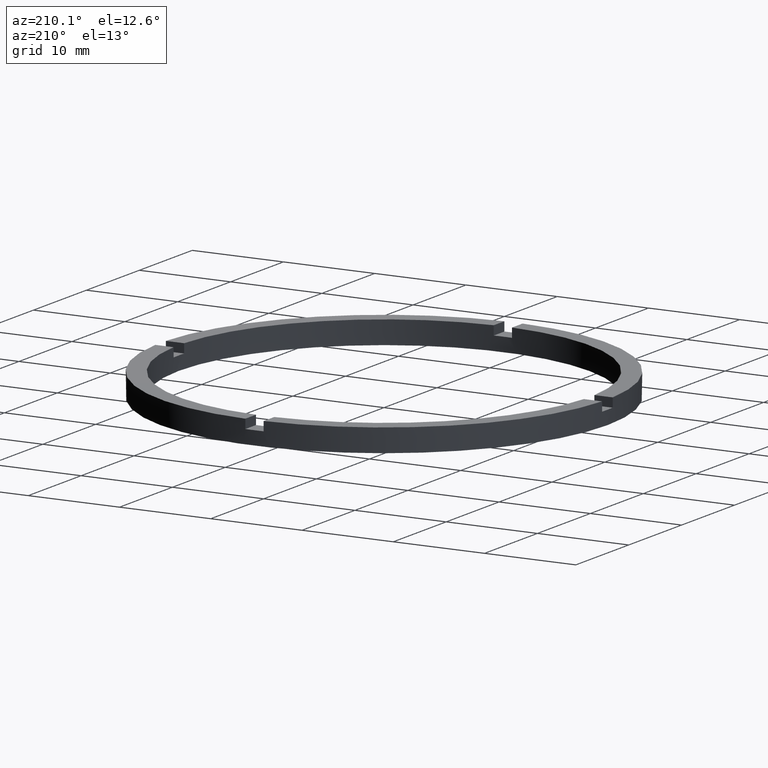
[diagram: clean part render]
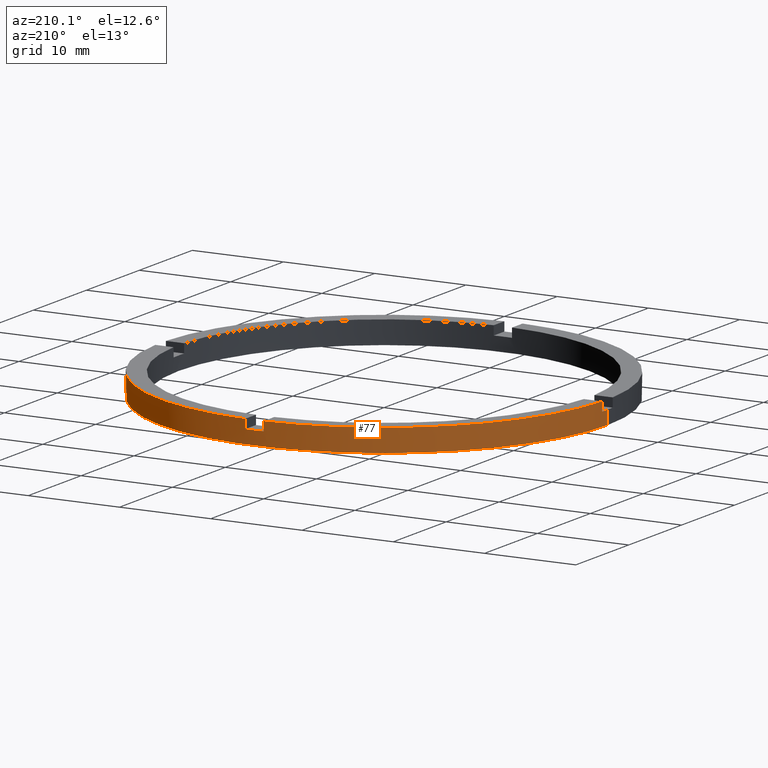
[diagram: same view with one face highlighted and labeled with its STEP entity id]
A machine part, auxiliary view. The second image highlights one B-rep face of the part: STEP entity #77.
In plain terms, the highlighted cylindrical surface (partial cylindrical patch) has radius 24.5 mm, axis along (-0, -0, -1).
Its self-contained STEP definition (entity closure, byte-faithful):
#18 = FACE_OUTER_BOUND ( 'NONE', #708, .T. ) ;
#25 = VERTEX_POINT ( 'NONE', #407 ) ;
#41 = ORIENTED_EDGE ( 'NONE', *, *, #683, .T. ) ;
#42 = CARTESIAN_POINT ( 'NONE',  ( 0.000000000000000000, 0.000000000000000000, 2.500000000000000000 ) ) ;
#60 = CIRCLE ( 'NONE', #313, 24.50000000000000000 ) ;
#63 = VECTOR ( 'NONE', #352, 1000.000000000000000 ) ;
#64 = CIRCLE ( 'NONE', #477, 24.50000000000000000 ) ;
#77 = ADVANCED_FACE ( 'NONE', ( #18 ), #575, .T. ) ;
#82 = LINE ( 'NONE', #376, #103 ) ;
#84 = CARTESIAN_POINT ( 'NONE',  ( 0.9999999999999740208, 24.47958332978729601, 1.500000000000000000 ) ) ;
#86 = DIRECTION ( 'NONE',  ( 0.000000000000000000, 0.000000000000000000, 1.000000000000000000 ) ) ;
#90 = ORIENTED_EDGE ( 'NONE', *, *, #469, .F. ) ;
#93 = AXIS2_PLACEMENT_3D ( 'NONE', #353, #406, #457 ) ;
#103 = VECTOR ( 'NONE', #718, 1000.000000000000000 ) ;
#108 = VERTEX_POINT ( 'NONE', #680 ) ;
#125 = DIRECTION ( 'NONE',  ( -0.000000000000000000, -0.000000000000000000, -1.000000000000000000 ) ) ;
#145 = DIRECTION ( 'NONE',  ( 1.000000000000000000, 0.000000000000000000, 0.000000000000000000 ) ) ;
#152 = DIRECTION ( 'NONE',  ( 1.000000000000000000, 0.000000000000000000, 0.000000000000000000 ) ) ;
#157 = CARTESIAN_POINT ( 'NONE',  ( -24.50000000000000000, 0.000000000000000000, 2.500000000000000000 ) ) ;
#169 = ORIENTED_EDGE ( 'NONE', *, *, #568, .F. ) ;
#172 = VERTEX_POINT ( 'NONE', #443 ) ;
#188 = DIRECTION ( 'NONE',  ( -0.000000000000000000, -0.000000000000000000, -1.000000000000000000 ) ) ;
#192 = CARTESIAN_POINT ( 'NONE',  ( 0.9999999999999740208, 24.47958332978729601, 2.500000000000000000 ) ) ;
#201 = CARTESIAN_POINT ( 'NONE',  ( 0.000000000000000000, 0.000000000000000000, 2.500000000000000000 ) ) ;
#214 = CARTESIAN_POINT ( 'NONE',  ( 24.50000000000000000, 3.000384657911015469E-15, 0.000000000000000000 ) ) ;
#220 = VERTEX_POINT ( 'NONE', #84 ) ;
#221 = CIRCLE ( 'NONE', #93, 24.50000000000000000 ) ;
#234 = LINE ( 'NONE', #317, #514 ) ;
#241 = CARTESIAN_POINT ( 'NONE',  ( 24.47958332978729956, 0.9999999999998423483, 1.500000000000000000 ) ) ;
#262 = AXIS2_PLACEMENT_3D ( 'NONE', #354, #509, #599 ) ;
#279 = ORIENTED_EDGE ( 'NONE', *, *, #643, .F. ) ;
#290 = ORIENTED_EDGE ( 'NONE', *, *, #730, .F. ) ;
#302 = ORIENTED_EDGE ( 'NONE', *, *, #704, .F. ) ;
#305 = ORIENTED_EDGE ( 'NONE', *, *, #748, .T. ) ;
#313 = AXIS2_PLACEMENT_3D ( 'NONE', #531, #664, #152 ) ;
#317 = CARTESIAN_POINT ( 'NONE',  ( 0.9999999999999740208, 24.47958332978729601, 2.500000000000000000 ) ) ;
#331 = CIRCLE ( 'NONE', #650, 24.50000000000000000 ) ;
#336 = VECTOR ( 'NONE', #86, 1000.000000000000000 ) ;
#349 = DIRECTION ( 'NONE',  ( 0.000000000000000000, 0.000000000000000000, 1.000000000000000000 ) ) ;
#352 = DIRECTION ( 'NONE',  ( -0.000000000000000000, -0.000000000000000000, -1.000000000000000000 ) ) ;
#353 = CARTESIAN_POINT ( 'NONE',  ( 0.000000000000000000, 0.000000000000000000, 1.500000000000000000 ) ) ;
#354 = CARTESIAN_POINT ( 'NONE',  ( 0.000000000000000000, 0.000000000000000000, 1.500000000000000000 ) ) ;
#368 = VERTEX_POINT ( 'NONE', #476 ) ;
#376 = CARTESIAN_POINT ( 'NONE',  ( 24.50000000000000000, 3.000384657911015469E-15, 2.500000000000000000 ) ) ;
#388 = CARTESIAN_POINT ( 'NONE',  ( -1.000000000000025979, 24.47958332978729601, 2.500000000000000000 ) ) ;
#390 = EDGE_CURVE ( 'NONE', #455, #640, #331, .T. ) ;
#404 = ORIENTED_EDGE ( 'NONE', *, *, #440, .T. ) ;
#406 = DIRECTION ( 'NONE',  ( 0.000000000000000000, 0.000000000000000000, 1.000000000000000000 ) ) ;
#407 = CARTESIAN_POINT ( 'NONE',  ( 24.47958332978729956, 0.9999999999998423483, 2.500000000000000000 ) ) ;
#425 = DIRECTION ( 'NONE',  ( 0.000000000000000000, 0.000000000000000000, 1.000000000000000000 ) ) ;
#430 = VERTEX_POINT ( 'NONE', #241 ) ;
#440 = EDGE_CURVE ( 'NONE', #475, #455, #82, .T. ) ;
#443 = CARTESIAN_POINT ( 'NONE',  ( -24.47958332978729601, 0.9999999999999742428, 2.500000000000000000 ) ) ;
#452 = EDGE_CURVE ( 'NONE', #554, #172, #612, .T. ) ;
#455 = VERTEX_POINT ( 'NONE', #214 ) ;
#457 = DIRECTION ( 'NONE',  ( 1.000000000000000000, 0.000000000000000000, 0.000000000000000000 ) ) ;
#468 = DIRECTION ( 'NONE',  ( 0.000000000000000000, 0.000000000000000000, 1.000000000000000000 ) ) ;
#469 = EDGE_CURVE ( 'NONE', #220, #108, #60, .T. ) ;
#475 = VERTEX_POINT ( 'NONE', #651 ) ;
#476 = CARTESIAN_POINT ( 'NONE',  ( -1.000000000000025979, 24.47958332978729601, 2.500000000000000000 ) ) ;
#477 = AXIS2_PLACEMENT_3D ( 'NONE', #201, #468, #516 ) ;
#480 = ORIENTED_EDGE ( 'NONE', *, *, #390, .T. ) ;
#494 = DIRECTION ( 'NONE',  ( 0.000000000000000000, 0.000000000000000000, 1.000000000000000000 ) ) ;
#509 = DIRECTION ( 'NONE',  ( 0.000000000000000000, 0.000000000000000000, 1.000000000000000000 ) ) ;
#514 = VECTOR ( 'NONE', #494, 1000.000000000000000 ) ;
#516 = DIRECTION ( 'NONE',  ( 1.000000000000000000, 0.000000000000000000, 0.000000000000000000 ) ) ;
#517 = VECTOR ( 'NONE', #738, 1000.000000000000000 ) ;
#528 = VERTEX_POINT ( 'NONE', #192 ) ;
#531 = CARTESIAN_POINT ( 'NONE',  ( 0.000000000000000000, 0.000000000000000000, 1.500000000000000000 ) ) ;
#549 = AXIS2_PLACEMENT_3D ( 'NONE', #691, #188, #742 ) ;
#554 = VERTEX_POINT ( 'NONE', #633 ) ;
#562 = ORIENTED_EDGE ( 'NONE', *, *, #452, .T. ) ;
#568 = EDGE_CURVE ( 'NONE', #368, #172, #611, .T. ) ;
#575 = CYLINDRICAL_SURFACE ( 'NONE', #549, 24.50000000000000000 ) ;
#590 = LINE ( 'NONE', #658, #63 ) ;
#599 = DIRECTION ( 'NONE',  ( 1.000000000000000000, 0.000000000000000000, 0.000000000000000000 ) ) ;
#611 = CIRCLE ( 'NONE', #687, 24.50000000000000000 ) ;
#612 = LINE ( 'NONE', #776, #336 ) ;
#613 = LINE ( 'NONE', #157, #615 ) ;
#615 = VECTOR ( 'NONE', #125, 1000.000000000000000 ) ;
#623 = CIRCLE ( 'NONE', #262, 24.50000000000000000 ) ;
#628 = CARTESIAN_POINT ( 'NONE',  ( 0.000000000000000000, 0.000000000000000000, 0.000000000000000000 ) ) ;
#633 = CARTESIAN_POINT ( 'NONE',  ( -24.47958332978729601, 0.9999999999999742428, 1.500000000000000000 ) ) ;
#640 = VERTEX_POINT ( 'NONE', #641 ) ;
#641 = CARTESIAN_POINT ( 'NONE',  ( -24.50000000000000000, 0.000000000000000000, 0.000000000000000000 ) ) ;
#643 = EDGE_CURVE ( 'NONE', #693, #640, #613, .T. ) ;
#650 = AXIS2_PLACEMENT_3D ( 'NONE', #628, #425, #674 ) ;
#651 = CARTESIAN_POINT ( 'NONE',  ( 24.50000000000000000, 3.000384657911015469E-15, 1.500000000000000000 ) ) ;
#658 = CARTESIAN_POINT ( 'NONE',  ( 24.47958332978729956, 0.9999999999998423483, 2.500000000000000000 ) ) ;
#664 = DIRECTION ( 'NONE',  ( 0.000000000000000000, -0.000000000000000000, 1.000000000000000000 ) ) ;
#666 = EDGE_CURVE ( 'NONE', #475, #430, #623, .T. ) ;
#674 = DIRECTION ( 'NONE',  ( 1.000000000000000000, 0.000000000000000000, 0.000000000000000000 ) ) ;
#680 = CARTESIAN_POINT ( 'NONE',  ( -1.000000000000025979, 24.47958332978729601, 1.500000000000000000 ) ) ;
#683 = EDGE_CURVE ( 'NONE', #25, #430, #590, .T. ) ;
#687 = AXIS2_PLACEMENT_3D ( 'NONE', #42, #349, #145 ) ;
#691 = CARTESIAN_POINT ( 'NONE',  ( 0.000000000000000000, 0.000000000000000000, 2.500000000000000000 ) ) ;
#692 = ORIENTED_EDGE ( 'NONE', *, *, #666, .F. ) ;
#693 = VERTEX_POINT ( 'NONE', #695 ) ;
#695 = CARTESIAN_POINT ( 'NONE',  ( -24.50000000000000000, 0.000000000000000000, 1.500000000000000000 ) ) ;
#704 = EDGE_CURVE ( 'NONE', #25, #528, #64, .T. ) ;
#708 = EDGE_LOOP ( 'NONE', ( #692, #404, #480, #279, #290, #562, #169, #305, #90, #768, #302, #41 ) ) ;
#718 = DIRECTION ( 'NONE',  ( -0.000000000000000000, -0.000000000000000000, -1.000000000000000000 ) ) ;
#730 = EDGE_CURVE ( 'NONE', #554, #693, #221, .T. ) ;
#738 = DIRECTION ( 'NONE',  ( -0.000000000000000000, -0.000000000000000000, -1.000000000000000000 ) ) ;
#742 = DIRECTION ( 'NONE',  ( -1.000000000000000000, 0.000000000000000000, 0.000000000000000000 ) ) ;
#748 = EDGE_CURVE ( 'NONE', #368, #108, #775, .T. ) ;
#766 = EDGE_CURVE ( 'NONE', #220, #528, #234, .T. ) ;
#768 = ORIENTED_EDGE ( 'NONE', *, *, #766, .T. ) ;
#775 = LINE ( 'NONE', #388, #517 ) ;
#776 = CARTESIAN_POINT ( 'NONE',  ( -24.47958332978729601, 0.9999999999999742428, 2.500000000000000000 ) ) ;